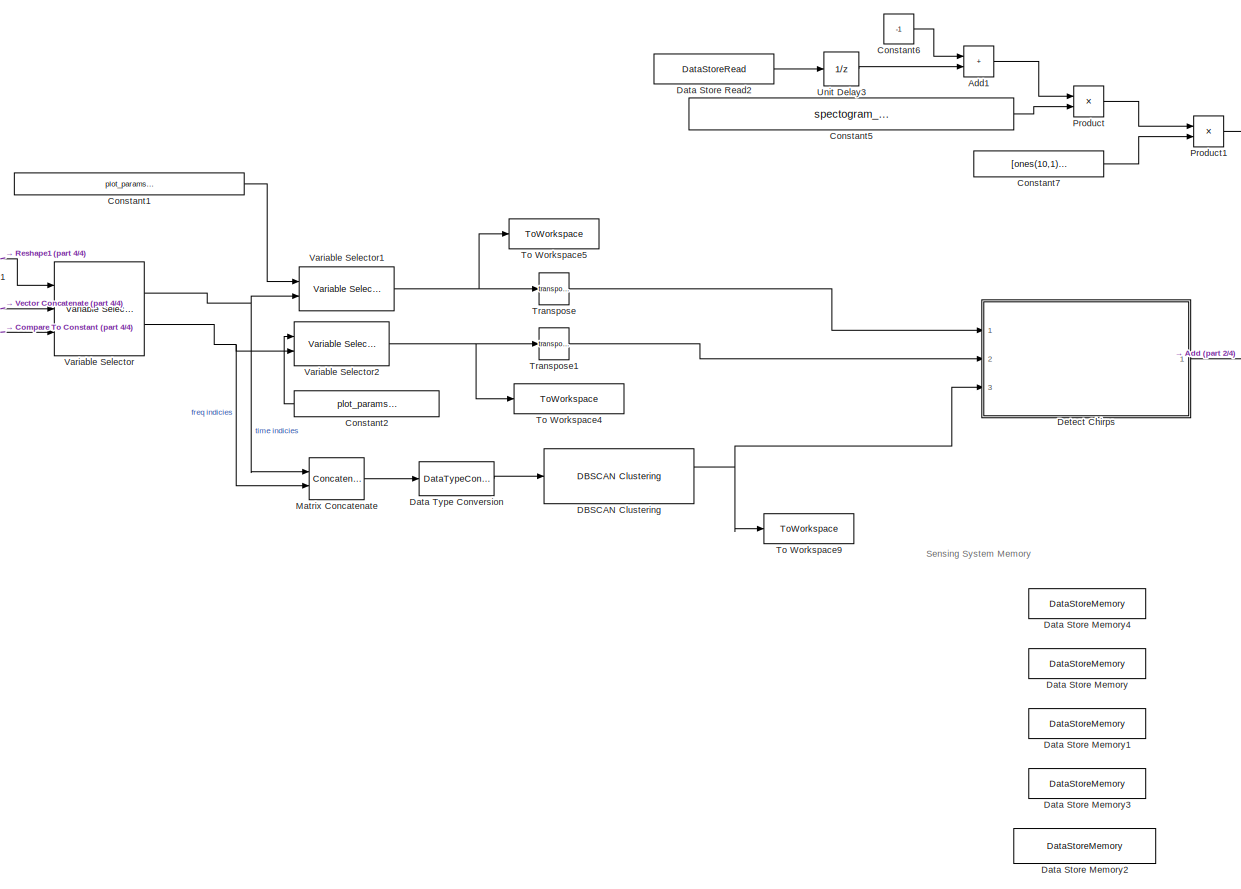
[diagram: root canvas - part 1/4, right side, full height]
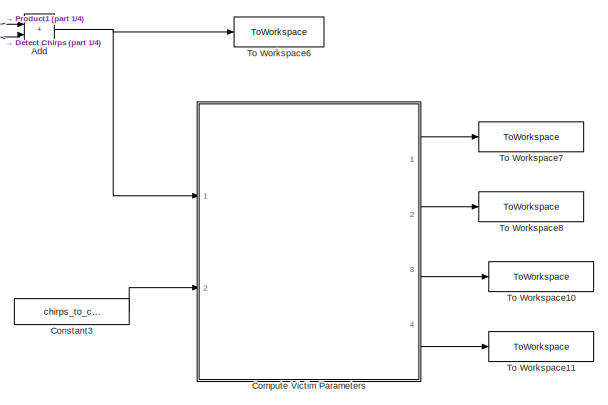
[diagram: root canvas - part 2/4, middle right region]
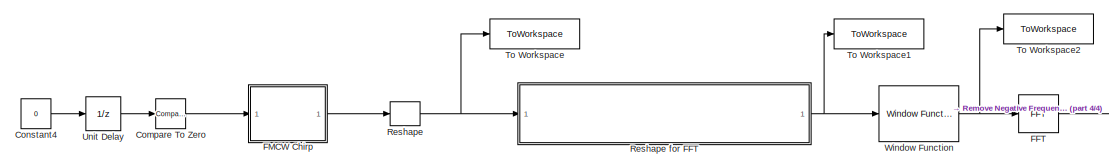
[diagram: root canvas - part 3/4, middle left region]
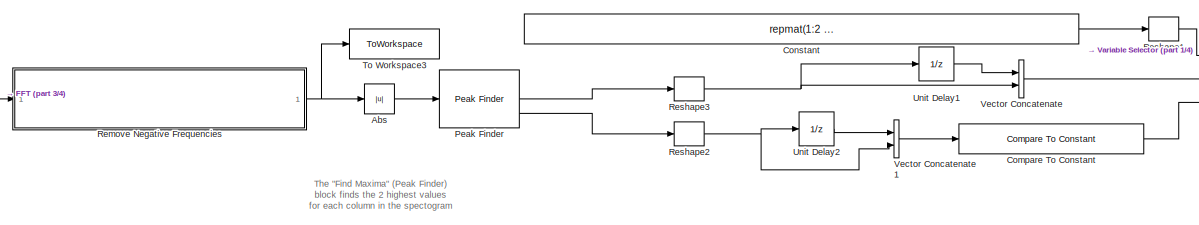
[diagram: root canvas - part 4/4, central region]
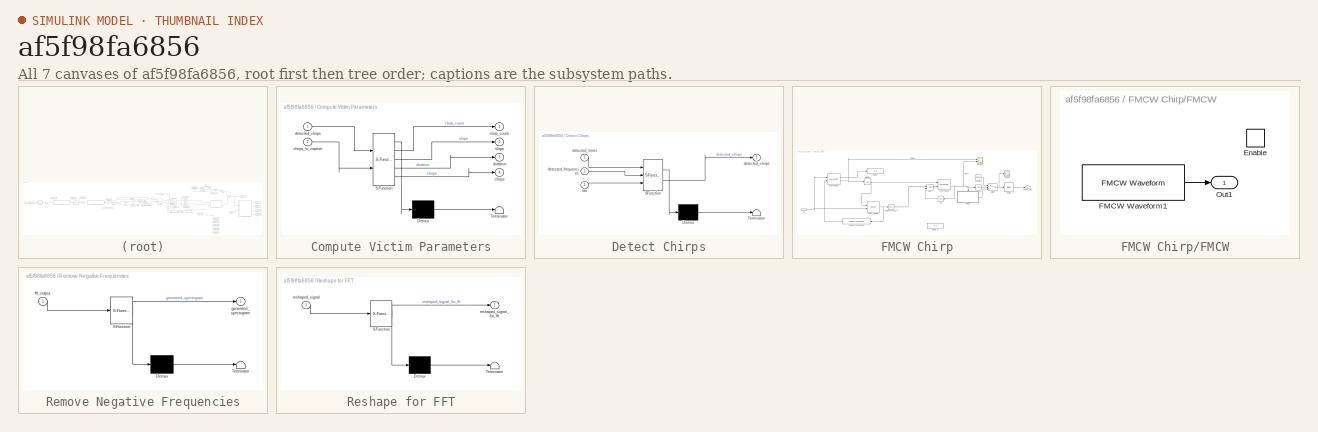
[diagram: thumbnail index - all 7 canvases of the model, root first then tree order]
MODEL slx_af5f98fa6856
KIND model
CONFIG AbsTol = auto
CONFIG EnableMultiTasking = off
CONFIG FixedStep = auto
CONFIG MaxStep = auto
CONFIG MinStep = auto
CONFIG RelTol = 1e-3
CONFIG SampleTimeConstraint = Unconstrained
CONFIG SolverName = VariableStepAuto
CONFIG StartTime = 0.0
CONFIG StopTime = stop_time
BLOCK [Abs] Abs
  SaturateOnIntegerOverflow = off
BLOCK [Sum] Add
  IconShape = rectangular
  Ports = [2, 1]
BLOCK [Sum] Add1
  IconShape = rectangular
  Ports = [2, 1]
BLOCK [Reference] Compare To Constant  REF=simulink/Logic and Bit
Operations/Compare
To Constant
  Ports = [1, 1]
  SourceBlock = simulink/Logic and Bit\nOperations/Compare\nTo Constant
  SourceProductBaseCode = SL
  SourceType = Compare To Constant
BLOCK [Reference] Compare To Zero  REF=simulink/Logic and Bit
Operations/Compare
To Zero
  Ports = [1, 1]
  SourceBlock = simulink/Logic and Bit\nOperations/Compare\nTo Zero
  SourceProductBaseCode = SL
  SourceType = Compare To Zero
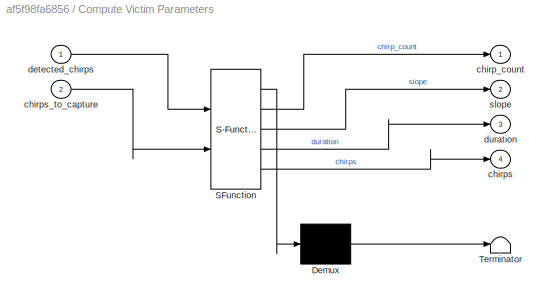
BLOCK [SubSystem] Compute Victim Parameters
  ErrorFcn = Stateflow.Translate.translate
  PermitHierarchicalResolution = ExplicitOnly
  Ports = [2, 4]
  RequestExecContextInheritance = off
  SFBlockType = MATLAB Function
  TreatAsAtomicUnit = on
BLOCK [Demux] Compute Victim Parameters/ Demux 
  Outputs = 1
  Ports = [1, 1]
BLOCK [S-Function] Compute Victim Parameters/ SFunction 
  EnableBusSupport = on
  FunctionName = sf_sfun
  PortCounts = [2 5]
  Ports = [2, 5]
  SFcnIsStateOwnerBlock = off
  SFunctionDeploymentMode = off
  Tag = Stateflow S-Function 4
BLOCK [Terminator] Compute Victim Parameters/ Terminator 
BLOCK [Outport] Compute Victim Parameters/chirp_count
BLOCK [Outport] Compute Victim Parameters/chirps
  Port = 4
BLOCK [Inport] Compute Victim Parameters/chirps_to_capture
  Port = 2
BLOCK [Inport] Compute Victim Parameters/detected_chirps
BLOCK [Outport] Compute Victim Parameters/duration
  Port = 3
BLOCK [Outport] Compute Victim Parameters/slope
  Port = 2
BLOCK [Constant] Constant
  OutDataTypeStr = uint32
  Value = repmat(1:2 * spectogram_params.num_freq_spectrum_samples_per_spectogram,peak_detection_params.numPeaks,1)
  VectorParams1D = off
BLOCK [Constant] Constant1
  Value = plot_params.combined_spectogram_times
BLOCK [Constant] Constant2
  Value = plot_params.frequencies
BLOCK [Constant] Constant3
  Value = chirps_to_capture
BLOCK [Constant] Constant4
  Value = 0
BLOCK [Constant] Constant5
  Value = spectogram_params.num_freq_spectrum_samples_per_spectogram
BLOCK [Constant] Constant6
  Value = -1
BLOCK [Constant] Constant7
  Value = [ones(10,1),zeros(10,1)]
BLOCK [Reference] DBSCAN Clustering  REF=radarlib/DBSCAN Clustering
  Ports = [1, 2]
  SourceBlock = radarlib/DBSCAN Clustering
  SourceProductBaseCode = RA
  SourceType = radar.internal.SimulinkClusterDBSCAN
BLOCK [DataStoreMemory] Data Store Memory
  DataStoreName = captured_chirps
  InitialValue = zeros(chirps_to_capture, 2)
  OutDataTypeStr = double
  ReadBeforeWriteMsg = warning
  ShowAdditionalParam = off
  SignalType = real
  WriteAfterReadMsg = warning
  WriteAfterWriteMsg = warning
BLOCK [DataStoreMemory] Data Store Memory1
  DataStoreName = average_slope
  OutDataTypeStr = double
  ReadBeforeWriteMsg = warning
  ShowAdditionalParam = off
  SignalType = real
  WriteAfterReadMsg = warning
  WriteAfterWriteMsg = warning
BLOCK [DataStoreMemory] Data Store Memory2
  DataStoreName = sampling_window_count
  InitialValue = -1
  OutDataTypeStr = int16
  ReadBeforeWriteMsg = warning
  ShowAdditionalParam = off
  SignalType = real
  VectorParams1D = off
  WriteAfterReadMsg = warning
  WriteAfterWriteMsg = warning
BLOCK [DataStoreMemory] Data Store Memory3
  DataStoreName = average_chirp_duration
  InitialValue = 20
  OutDataTypeStr = double
  ReadBeforeWriteMsg = warning
  ShowAdditionalParam = off
  SignalType = real
  WriteAfterReadMsg = warning
  WriteAfterWriteMsg = warning
BLOCK [DataStoreMemory] Data Store Memory4
  DataStoreName = num_captured_chirps
  OutDataTypeStr = int16
  ReadBeforeWriteMsg = warning
  ShowAdditionalParam = off
  SignalType = real
  WriteAfterReadMsg = warning
  WriteAfterWriteMsg = warning
BLOCK [DataStoreRead] Data Store Read2
  DataStoreName = sampling_window_count
  IndexOptions = Index vector (dialog)
  Indices = 1
  OutputSizes = 1
  Ports = [0, 1]
BLOCK [DataTypeConversion] Data Type Conversion
  RndMeth = Floor
  SaturateOnIntegerOverflow = off
BLOCK [SubSystem] Detect Chirps
  ErrorFcn = Stateflow.Translate.translate
  PermitHierarchicalResolution = ExplicitOnly
  Ports = [3, 1]
  RequestExecContextInheritance = off
  SFBlockType = MATLAB Function
  TreatAsAtomicUnit = on
BLOCK [Demux] Detect Chirps/ Demux 
  Outputs = 1
  Ports = [1, 1]
BLOCK [S-Function] Detect Chirps/ SFunction 
  EnableBusSupport = on
  FunctionName = sf_sfun
  Parameters = max_num_clusters
  PortCounts = [3 2]
  Ports = [3, 2]
  SFcnIsStateOwnerBlock = off
  SFunctionDeploymentMode = off
  Tag = Stateflow S-Function 3
BLOCK [Terminator] Detect Chirps/ Terminator 
BLOCK [Outport] Detect Chirps/detected_chirps
BLOCK [Inport] Detect Chirps/detected_frequencies
  Port = 2
BLOCK [Inport] Detect Chirps/detected_times
BLOCK [Inport] Detect Chirps/idx
  Port = 3
BLOCK [Reference] FFT  REF=dspxfrm3/FFT
  Ports = [1, 1]
  SourceBlock = dspxfrm3/FFT
  SourceProductBaseCode = DS
  SourceType = FFT
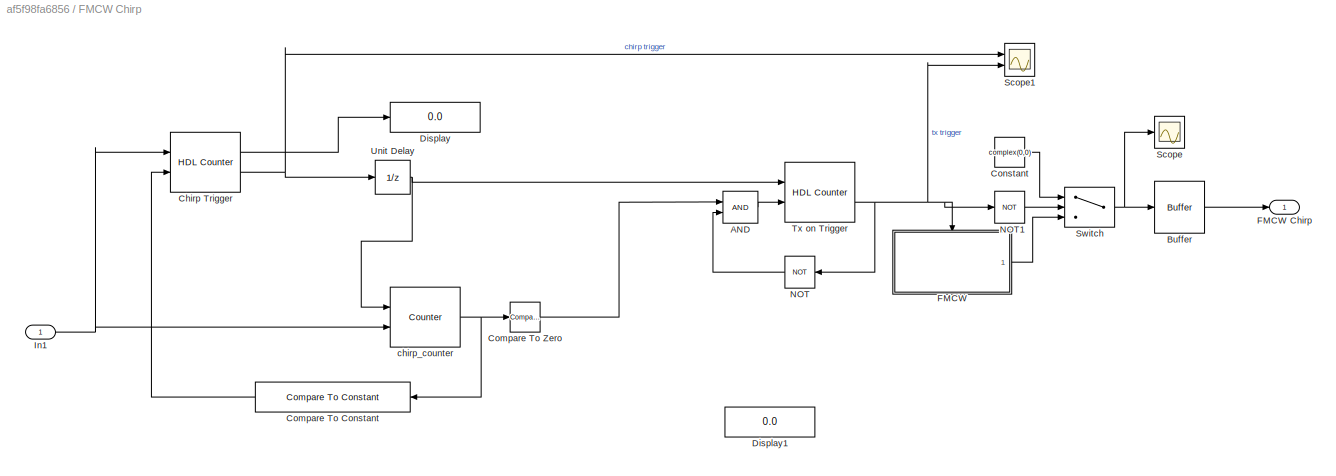
BLOCK [SubSystem] FMCW Chirp
  Ports = [1, 1]
  RequestExecContextInheritance = off
BLOCK [Logic] FMCW Chirp/AND
  AllPortsSameDT = off
  IconShape = distinctive
  OutDataTypeStr = boolean
  Ports = [2, 1]
BLOCK [Buffer] FMCW Chirp/Buffer
  N = int16(spectogram_params.num_ADC_samples_per_spectogram)
  OutputFrames = off
BLOCK [Reference] FMCW Chirp/Chirp Trigger  REF=hdlsllib/Sources/HDL Counter
  Ports = [2, 2]
  SourceBlock = hdlsllib/Sources/HDL Counter
  SourceProductBaseCode = SL
  SourceType = HDL Counter
BLOCK [Reference] FMCW Chirp/Compare To Constant  REF=simulink/Logic and Bit
Operations/Compare
To Constant
  Ports = [1, 1]
  SourceBlock = simulink/Logic and Bit\nOperations/Compare\nTo Constant
  SourceProductBaseCode = SL
  SourceType = Compare To Constant
BLOCK [Reference] FMCW Chirp/Compare To Zero  REF=hdlsllib/Logic and Bit
Operations/Compare
To Zero
  Ports = [1, 1]
  SourceBlock = hdlsllib/Logic and Bit\nOperations/Compare\nTo Zero
  SourceProductBaseCode = SL
  SourceType = Compare To Zero
BLOCK [Constant] FMCW Chirp/Constant
  Value = complex(0,0)
BLOCK [Display] FMCW Chirp/Display
  Commented = on
  Decimation = 1
  Ports = [1]
BLOCK [Display] FMCW Chirp/Display1
  Decimation = 1
  Ports = [1]
BLOCK [SubSystem] FMCW Chirp/FMCW
  Ports = [0, 1, 1]
  RequestExecContextInheritance = off
BLOCK [Outport] FMCW Chirp/FMCW Chirp
BLOCK [EnablePort] FMCW Chirp/FMCW/Enable
  Ports = []
  StatesWhenEnabling = reset
BLOCK [Reference] FMCW Chirp/FMCW/FMCW Waveform1  REF=phasedwavlib/FMCW Waveform
  Ports = [0, 1]
  SourceBlock = phasedwavlib/FMCW Waveform
  SourceProductBaseCode = AR
  SourceType = phased.FMCWWaveform
BLOCK [Outport] FMCW Chirp/FMCW/Out1
BLOCK [Inport] FMCW Chirp/In1
BLOCK [Logic] FMCW Chirp/NOT
  AllPortsSameDT = off
  IconShape = distinctive
  Operator = NOT
  OutDataTypeStr = boolean
  Ports = [1, 1]
BLOCK [Logic] FMCW Chirp/NOT1
  AllPortsSameDT = off
  IconShape = distinctive
  Operator = NOT
  OutDataTypeStr = boolean
  Ports = [1, 1]
BLOCK [Scope] FMCW Chirp/Scope
  Commented = on
  Floating = off
  NumInputPorts = 1
  Ports = [1]
  ScopeSpecificationString = Simulink.scopes.TimeScopeBlockCfg('CurrentConfiguration', extmgr.ConfigurationSet(extmgr.Configuration('Core','General UI',true),extmgr.Configuration('Core','Source UI',true),extmgr.Configuration('Sources','WiredSimulink',true),extmgr.Configuration('Visuals','Time Domain',true,'SerializedDisplays',{struct('MinYLimReal','-1.25','MaxYLimReal','1.25','YLabelReal','','MinYLimMag','0.00000','MaxYLimMag...<+1356ch>
BLOCK [Scope] FMCW Chirp/Scope1
  Floating = off
  NumInputPorts = 2
  Ports = [2]
  ScopeSpecificationString = Simulink.scopes.TimeScopeBlockCfg('CurrentConfiguration', extmgr.ConfigurationSet(extmgr.Configuration('Core','General UI',true),extmgr.Configuration('Core','Source UI',true),extmgr.Configuration('Sources','WiredSimulink',true,'DataLoggingVariableName','ScopeData1'),extmgr.Configuration('Visuals','Time Domain',true,'SerializedDisplays',{struct('MinYLimReal','-0.125','MaxYLimReal','1.125','YLabelRe...<+1441ch>
BLOCK [Switch] FMCW Chirp/Switch
  Criteria = u2 > Threshold
  InputSameDT = off
  SaturateOnIntegerOverflow = off
BLOCK [Reference] FMCW Chirp/Tx on Trigger  REF=hdlsllib/Sources/HDL Counter
  Ports = [2, 2]
  SourceBlock = hdlsllib/Sources/HDL Counter
  SourceProductBaseCode = SL
  SourceType = HDL Counter
BLOCK [UnitDelay] FMCW Chirp/Unit Delay
  Commented = through
  HasFrameUpgradeWarning = on
  SampleTime = -1
BLOCK [Reference] FMCW Chirp/chirp_counter  REF=dspswit3/Counter
  Ports = [2, 1]
  SourceBlock = dspswit3/Counter
  SourceProductBaseCode = DS
  SourceType = Counter
BLOCK [Concatenate] Matrix Concatenate
  ConcatenateDimension = 2
  Mode = Multidimensional array
  Ports = [2, 1]
BLOCK [Reference] Peak Finder  REF=dspsigops/Peak Finder
  Ports = [1, 3]
  SourceBlock = dspsigops/Peak Finder
  SourceProductBaseCode = DS
  SourceType = Peak Finder
BLOCK [Product] Product
  Ports = [2, 1]
BLOCK [Product] Product1
  Ports = [2, 1]
BLOCK [SubSystem] Remove Negative Frequencies
  ErrorFcn = Stateflow.Translate.translate
  PermitHierarchicalResolution = ExplicitOnly
  Ports = [1, 1]
  RequestExecContextInheritance = off
  SFBlockType = MATLAB Function
  TreatAsAtomicUnit = on
BLOCK [Demux] Remove Negative Frequencies/ Demux 
  Outputs = 1
  Ports = [1, 1]
BLOCK [S-Function] Remove Negative Frequencies/ SFunction 
  EnableBusSupport = on
  FunctionName = sf_sfun
  Parameters = half_fft_size
  PortCounts = [1 2]
  Ports = [1, 2]
  SFcnIsStateOwnerBlock = off
  SFunctionDeploymentMode = off
  Tag = Stateflow S-Function 1
BLOCK [Terminator] Remove Negative Frequencies/ Terminator 
BLOCK [Inport] Remove Negative Frequencies/fft_output
BLOCK [Outport] Remove Negative Frequencies/generated_spectogram
BLOCK [Reshape] Reshape
  OutputDimensionality = Customize
  OutputDimensions = [50,50]
  Ports = [1, 1]
BLOCK [SubSystem] Reshape for FFT
  ErrorFcn = Stateflow.Translate.translate
  PermitHierarchicalResolution = ExplicitOnly
  Ports = [1, 1]
  RequestExecContextInheritance = off
  SFBlockType = MATLAB Function
  TreatAsAtomicUnit = on
BLOCK [Demux] Reshape for FFT/ Demux 
  Outputs = 1
  Ports = [1, 1]
BLOCK [S-Function] Reshape for FFT/ SFunction 
  EnableBusSupport = on
  FunctionName = sf_sfun
  Parameters = fft_size
  PortCounts = [1 2]
  Ports = [1, 2]
  SFcnIsStateOwnerBlock = off
  SFunctionDeploymentMode = off
  Tag = Stateflow S-Function 2
BLOCK [Terminator] Reshape for FFT/ Terminator 
BLOCK [Inport] Reshape for FFT/reshaped_signal
BLOCK [Outport] Reshape for FFT/reshaped_signal_for_fft
BLOCK [Reshape] Reshape1
  Ports = [1, 1]
BLOCK [Reshape] Reshape2
  Ports = [1, 1]
BLOCK [Reshape] Reshape3
  Ports = [1, 1]
BLOCK [ToWorkspace] To Workspace
  FixptAsFi = on
  MaxDataPoints = 2
  Ports = [1]
  SampleTime = -1
  VariableName = reshaped_signal
BLOCK [ToWorkspace] To Workspace1
  FixptAsFi = on
  MaxDataPoints = 2
  Ports = [1]
  SampleTime = -1
  VariableName = reshaped_signal_for_fft
BLOCK [ToWorkspace] To Workspace10
  FixptAsFi = on
  MaxDataPoints = 2
  Ports = [1]
  SampleTime = -1
  VariableName = duration
BLOCK [ToWorkspace] To Workspace11
  FixptAsFi = on
  MaxDataPoints = 2
  Ports = [1]
  SampleTime = -1
  VariableName = captured_chirps
BLOCK [ToWorkspace] To Workspace2
  FixptAsFi = on
  MaxDataPoints = 2
  Ports = [1]
  SampleTime = -1
  VariableName = windowed_signal
BLOCK [ToWorkspace] To Workspace3
  FixptAsFi = on
  MaxDataPoints = 2
  Ports = [1]
  SampleTime = -1
  VariableName = generated_spectogram
BLOCK [ToWorkspace] To Workspace4
  FixptAsFi = on
  MaxDataPoints = 2
  Ports = [1]
  SampleTime = -1
  VariableName = detected_frequencies
BLOCK [ToWorkspace] To Workspace5
  FixptAsFi = on
  MaxDataPoints = 2
  Ports = [1]
  SampleTime = -1
  VariableName = detected_times
BLOCK [ToWorkspace] To Workspace6
  FixptAsFi = on
  MaxDataPoints = 2
  Ports = [1]
  SampleTime = -1
  VariableName = detected_chirps
BLOCK [ToWorkspace] To Workspace7
  FixptAsFi = on
  MaxDataPoints = 2
  Ports = [1]
  SampleTime = -1
  VariableName = chirp_count
BLOCK [ToWorkspace] To Workspace8
  FixptAsFi = on
  MaxDataPoints = 2
  Ports = [1]
  SampleTime = -1
  VariableName = slope
BLOCK [ToWorkspace] To Workspace9
  FixptAsFi = on
  MaxDataPoints = 2
  Ports = [1]
  SampleTime = -1
  VariableName = idx
BLOCK [Math] Transpose
  Operator = transpose
  Ports = [1, 1]
BLOCK [Math] Transpose1
  Operator = transpose
  Ports = [1, 1]
BLOCK [UnitDelay] Unit Delay
  HasFrameUpgradeWarning = on
  InitialCondition = 1
  SampleTime = -1
BLOCK [UnitDelay] Unit Delay1
  HasFrameUpgradeWarning = on
  SampleTime = -1
BLOCK [UnitDelay] Unit Delay2
  HasFrameUpgradeWarning = on
  SampleTime = -1
BLOCK [UnitDelay] Unit Delay3
  HasFrameUpgradeWarning = on
  SampleTime = -1
BLOCK [Reference] Variable Selector  REF=dspindex/Variable
Selector
  Ports = [3, 2]
  SourceBlock = dspindex/Variable\nSelector
  SourceProductBaseCode = DS
  SourceType = Variable Selector
BLOCK [Reference] Variable Selector1  REF=dspindex/Variable
Selector
  Ports = [2, 1]
  SourceBlock = dspindex/Variable\nSelector
  SourceProductBaseCode = DS
  SourceType = Variable Selector
BLOCK [Reference] Variable Selector2  REF=dspindex/Variable
Selector
  Ports = [2, 1]
  SourceBlock = dspindex/Variable\nSelector
  SourceProductBaseCode = DS
  SourceType = Variable Selector
BLOCK [Concatenate] Vector Concatenate
  Ports = [2, 1]
BLOCK [Concatenate] Vector Concatenate1
  Ports = [2, 1]
BLOCK [Reference] Window Function  REF=dspsigops/Window
Function
  Ports = [1, 1]
  SourceBlock = dspsigops/Window\nFunction
  SourceProductBaseCode = DS
  SourceType = Window Function
ANNOTATION (root): Sensing System Memory
ANNOTATION (root): The "Find Maxima" (Peak Finder) block finds the 2 highest values for each column in the spectogram
LINE Abs:1 -> Peak Finder:1
LINE Add1:1 -> Product:1
NET Add:1 -> Compute Victim Parameters:1, To Workspace6:1
LINE Compare To Constant:1 -> Variable Selector:3
LINE Compare To Zero:1 -> FMCW Chirp:1
LINE Compute Victim Parameters:1 -> To Workspace7:1
LINE Compute Victim Parameters:2 -> To Workspace8:1
LINE Compute Victim Parameters:3 -> To Workspace10:1
LINE Compute Victim Parameters:4 -> To Workspace11:1
LINE Constant1:1 -> Variable Selector1:1
LINE Constant2:1 -> Variable Selector2:1
LINE Constant3:1 -> Compute Victim Parameters:2
LINE Constant4:1 -> Unit Delay:1
LINE Constant5:1 -> Product:2
LINE Constant6:1 -> Add1:1
LINE Constant7:1 -> Product1:2
LINE Constant:1 -> Reshape1:1
NET DBSCAN Clustering:1 -> Detect Chirps:3, To Workspace9:1
LINE Data Store Read2:1 -> Unit Delay3:1
LINE Data Type Conversion:1 -> DBSCAN Clustering:1
LINE Detect Chirps:1 -> Add:2
LINE FFT:1 -> Remove Negative Frequencies:1
LINE FMCW Chirp/AND:1 -> FMCW Chirp/Tx on Trigger:2
LINE FMCW Chirp/Buffer:1 -> FMCW Chirp/FMCW Chirp:1
LINE FMCW Chirp/Chirp Trigger:1 -> FMCW Chirp/Display:1
NET FMCW Chirp/Chirp Trigger:2 -> FMCW Chirp/Scope1:1, FMCW Chirp/Unit Delay:1
LINE FMCW Chirp/Compare To Constant:1 -> FMCW Chirp/Chirp Trigger:2
LINE FMCW Chirp/Compare To Zero:1 -> FMCW Chirp/AND:1
LINE FMCW Chirp/Constant:1 -> FMCW Chirp/Switch:1
LINE FMCW Chirp/FMCW/FMCW Waveform1:1 -> FMCW Chirp/FMCW/Out1:1
LINE FMCW Chirp/FMCW:1 -> FMCW Chirp/Switch:3
NET FMCW Chirp/In1:1 -> FMCW Chirp/Chirp Trigger:1, FMCW Chirp/chirp_counter:2
LINE FMCW Chirp/NOT1:1 -> FMCW Chirp/Switch:2
LINE FMCW Chirp/NOT:1 -> FMCW Chirp/AND:2
NET FMCW Chirp/Switch:1 -> FMCW Chirp/Buffer:1, FMCW Chirp/Scope:1
NET FMCW Chirp/Tx on Trigger:2 -> FMCW Chirp/FMCW:enable, FMCW Chirp/NOT1:1, FMCW Chirp/NOT:1, FMCW Chirp/Scope1:2
NET FMCW Chirp/Unit Delay:1 -> FMCW Chirp/Tx on Trigger:1, FMCW Chirp/chirp_counter:1
NET FMCW Chirp/chirp_counter:1 -> FMCW Chirp/Compare To Constant:1, FMCW Chirp/Compare To Zero:1
LINE FMCW Chirp:1 -> Reshape:1
LINE Matrix Concatenate:1 -> Data Type Conversion:1
LINE Peak Finder:2 -> Reshape3:1
LINE Peak Finder:3 -> Reshape2:1
LINE Product1:1 -> Add:1
LINE Product:1 -> Product1:1
NET Remove Negative Frequencies:1 -> Abs:1, To Workspace3:1
NET Reshape for FFT:1 -> To Workspace1:1, Window Function:1
LINE Reshape1:1 -> Variable Selector:1
NET Reshape2:1 -> Unit Delay2:1, Vector Concatenate1:2
NET Reshape3:1 -> Unit Delay1:1, Vector Concatenate:2
NET Reshape:1 -> Reshape for FFT:1, To Workspace:1
LINE Transpose1:1 -> Detect Chirps:2
LINE Transpose:1 -> Detect Chirps:1
LINE Unit Delay1:1 -> Vector Concatenate:1
LINE Unit Delay2:1 -> Vector Concatenate1:1
LINE Unit Delay3:1 -> Add1:2
LINE Unit Delay:1 -> Compare To Zero:1
NET Variable Selector1:1 -> To Workspace5:1, Transpose:1
NET Variable Selector2:1 -> To Workspace4:1, Transpose1:1
NET Variable Selector:1 -> Matrix Concatenate:1, Variable Selector1:2
NET Variable Selector:2 -> Matrix Concatenate:2, Variable Selector2:2
LINE Vector Concatenate1:1 -> Compare To Constant:1
LINE Vector Concatenate:1 -> Variable Selector:2
NET Window Function:1 -> FFT:1, To Workspace2:1
note: NET lines group one-source signal fan-out (src -> all destinations, sorted); 1:1 wires keep LINE
CHART Remove Negative Frequencies states=1 transitions=1
  STATE_LABEL 'eML_blk_kernel()'
  STATE_LABEL 'SCRIPT:\nfunction generated_spectogram = remove_negative_frequencies(fft_output, half_fft_size)\n   \ngenerated_spectogram = fft_output(1:half_fft_size,:);\n'
CHART Reshape for FFT states=1 transitions=1
  STATE_LABEL 'eML_blk_kernel()'
  STATE_LABEL 'SCRIPT:\nfunction reshaped_signal_for_fft = reshape_for_fft(reshaped_signal, fft_size)\n   \nreshaped_signal_for_fft = reshaped_signal(1:fft_size,:);\n'
CHART Detect Chirps states=1 transitions=1
  STATE_LABEL 'eML_blk_kernel()'
  STATE_LABEL 'SCRIPT:\nfunction detected_chirps  = detect_chirps(detected_times,detected_frequencies,idx,max_num_clusters)\n    %solve for the linear equation for each cluster provided there are enough\n    %points\n    threshold = 15;\n    detected_chirps = zeros(max_num_clusters,2);\n    global sampling_window_count;\n    for cluster_id = 1:max(idx)\n        %solve for linear model using linear algrebra\n        %y is...<+465ch>'
CHART Compute Victim Parameters states=1 transitions=1
  STATE_LABEL 'eML_blk_kernel()'
  STATE_LABEL 'SCRIPT:\nfunction [chirp_count, slope, duration, chirps] = compute_victim_parameters(detected_chirps, chirps_to_capture)\n    %declare global variables for accessing previously captured chirps, the\n    %previously computed chirp duration, and the average slope\n    global average_chirp_duration average_slope captured_chirps num_captured_chirps;\n    for i = 1:size(detected_chirps,1)\n        if detecte...<+1007ch>'
CHART  states=0 transitions=0
CHART  states=0 transitions=0
CHART  states=0 transitions=0
CHART  states=0 transitions=0
